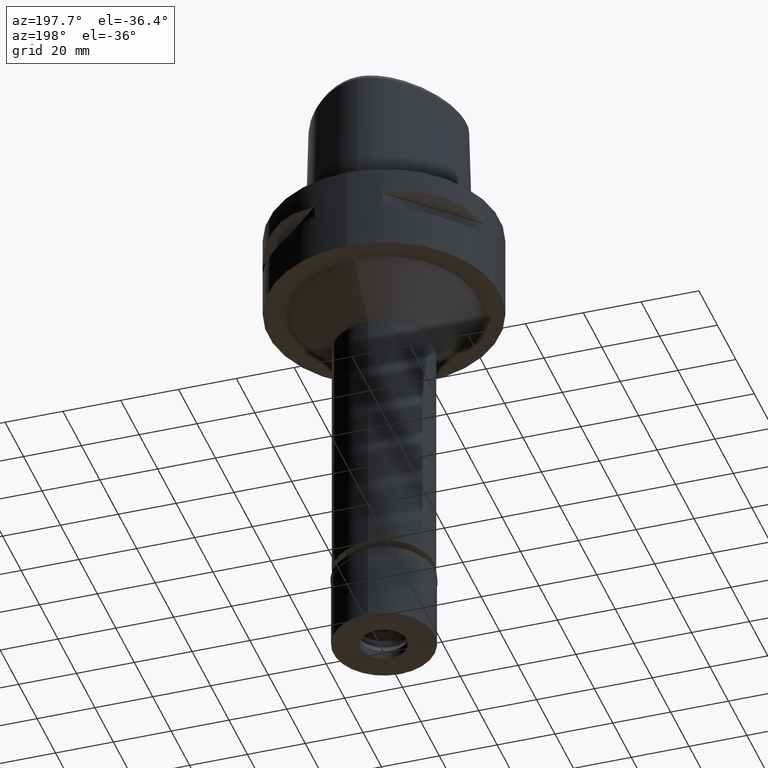
[diagram: clean part render]
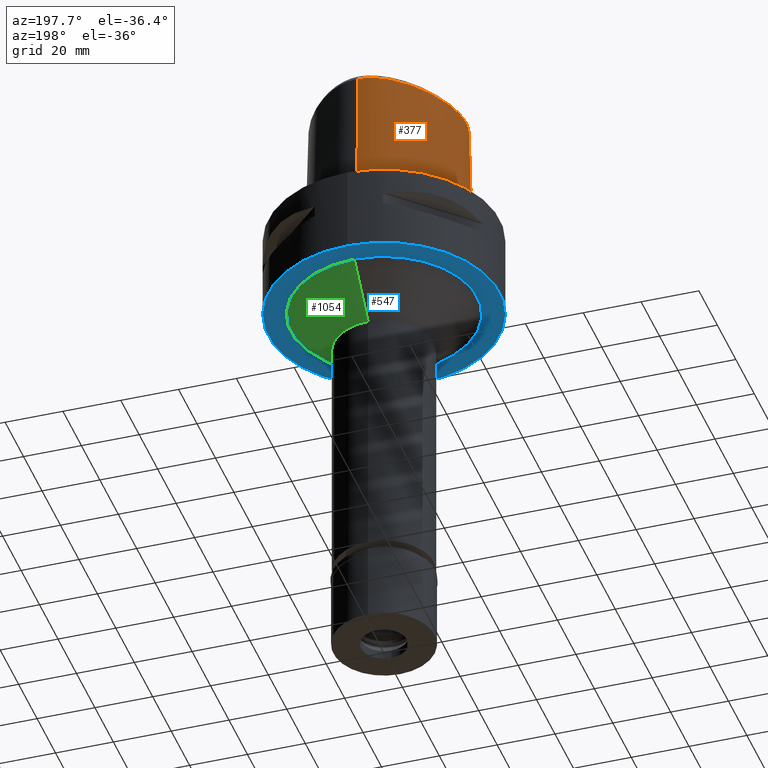
[diagram: same view with three faces highlighted in distinct colors, each labeled with its STEP entity id]
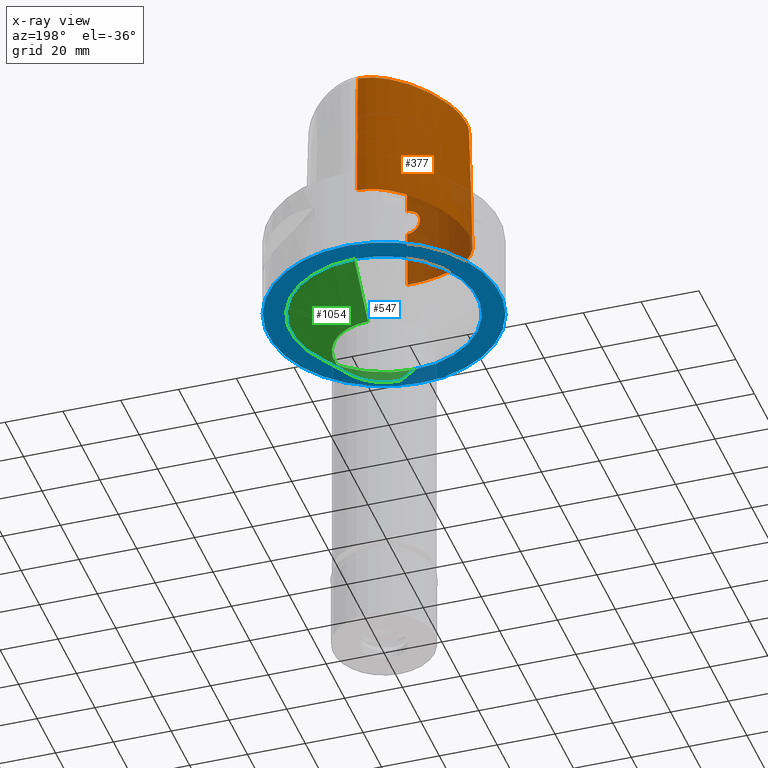
[diagram: x-ray of the same camera — body ghosted, the three highlighted faces saturated]
A machine part, auxiliary view with three faces highlighted in distinct colors.
The next image is the same camera in x-ray (body ghosted, the three faces saturated) — at least one of them is partly hidden behind the body in this view.
Their STEP definitions:

[orange] entity #377 — the highlighted face is a freeform B-spline surface patch.
#18 = CARTESIAN_POINT ( 'NONE',  ( -4.858283135684031119E-09, -24.74922215084299282, 33.03333351495449932 ) ) ;
#29 = CARTESIAN_POINT ( 'NONE',  ( -4.472216406693000579, -24.20008985674000357, 46.52070903171000538 ) ) ;
#52 = CARTESIAN_POINT ( 'NONE',  ( -24.79336081449000062, -16.13554022451999970, -0.9304144766363000585 ) ) ;
#54 = CARTESIAN_POINT ( 'NONE',  ( -26.68853359099298928, -5.367220537273253989, 46.52070903171008354 ) ) ;
#59 = CARTESIAN_POINT ( 'NONE',  ( -3.245740051672676429, -24.92006245179830159, 21.81130774429477981 ) ) ;
#77 = CARTESIAN_POINT ( 'NONE',  ( 0.5548736449643000279, -24.38637836172000206, 47.45113830844999825 ) ) ;
#84 = CARTESIAN_POINT ( 'NONE',  ( -3.459328791574007411, -24.75086403572711191, 27.97515479134742833 ) ) ;
#92 = CARTESIAN_POINT ( 'NONE',  ( -4.516620139914707011, -24.24973684088320525, 44.34713935447333455 ) ) ;
#109 = CARTESIAN_POINT ( 'NONE',  ( -6.528779357264999916, -24.06669574351000307, 47.45113830844999825 ) ) ;
#117 = CARTESIAN_POINT ( 'NONE',  ( -4.550009659928407224, -24.73228693208369933, 25.03285394944704123 ) ) ;
#133 = CARTESIAN_POINT ( 'NONE',  ( -25.30843714899000219, -14.61183300052000078, 15.19676978505999898 ) ) ;
#136 = CARTESIAN_POINT ( 'NONE',  ( -2.404910036721157773, -24.79321437770949998, 28.86288751850016610 ) ) ;
#145 = EDGE_CURVE ( 'NONE', #4617, #909, #4428, .T. ) ;
#160 = CARTESIAN_POINT ( 'NONE',  ( -4.304263127651267951, -24.79330400446724525, 23.52125164125756740 ) ) ;
#172 = CARTESIAN_POINT ( 'NONE',  ( -2.676740186769421825, -25.57500002245401660, -8.981630610148221006E-07 ) ) ;
#186 = CARTESIAN_POINT ( 'NONE',  ( -4.602965878455999693, -24.35127227233000013, 40.00000000000000000 ) ) ;
#231 = CARTESIAN_POINT ( 'NONE',  ( -1.979024681900256155, -25.01188081594408175, 20.90239184516246951 ) ) ;
#273 = CARTESIAN_POINT ( 'NONE',  ( -1.344666072917000002E-11, 28.41206021534999593, 46.52071719450999154 ) ) ;
#302 = B_SPLINE_CURVE_WITH_KNOTS ( 'NONE', 3,
 ( #2607, #2220, #3814, #1240 ),
 .UNSPECIFIED., .F., .F.,
 ( 4, 4 ),
 ( 0.0000000000000000000, 1.000000000000000000 ),
 .UNSPECIFIED. ) ;
#324 = CARTESIAN_POINT ( 'NONE',  ( -1.722296434336842763, -24.81387508079694015, 29.21144792399064016 ) ) ;
#373 = CARTESIAN_POINT ( 'NONE',  ( 0.8850788444128999677, 29.16624661484000214, 15.19676978505999898 ) ) ;
#377 = ADVANCED_FACE ( 'NONE', ( #3550 ), #2624, .T. ) ;
#399 = CARTESIAN_POINT ( 'NONE',  ( -0.7475778414347999945, 29.63225228728000005, -0.9304144766363000585 ) ) ;
#407 = CARTESIAN_POINT ( 'NONE',  ( 1.372734075386999954E-14, -24.83629963747999980, 29.55000000000000071 ) ) ;
#412 = DIRECTION ( 'NONE',  ( -5.053220550043809941E-13, -0.02499051295420905497, -0.9996876883618630583 ) ) ;
#425 = CARTESIAN_POINT ( 'NONE',  ( -6.114741924721999844, 27.99897533564999819, 15.19676978505999898 ) ) ;
#457 = CARTESIAN_POINT ( 'NONE',  ( 0.8532670503982000554, -25.59082387529999636, -0.9304144766363000585 ) ) ;
#459 = CARTESIAN_POINT ( 'NONE',  ( -26.52477687770683090, -8.605158286269631418, 46.52070903171008354 ) ) ;
#464 = CARTESIAN_POINT ( 'NONE',  ( -3.825895809632645417, -24.85889621362734303, 22.53711802513210216 ) ) ;
#481 = CARTESIAN_POINT ( 'NONE',  ( 0.8392169873102000022, -24.78463084467999877, 31.32395404676000084 ) ) ;
#488 = CARTESIAN_POINT ( 'NONE',  ( -4.160790905031579001, -24.72274124955068686, 26.84178595757023444 ) ) ;
#509 = CARTESIAN_POINT ( 'NONE',  ( -25.65830880164000050, -14.81383149360000040, -0.9304144766363000585 ) ) ;
#518 = CARTESIAN_POINT ( 'NONE',  ( -4.198926685531663594, -24.72160612811941505, 26.75259212958650323 ) ) ;
#533 = CARTESIAN_POINT ( 'NONE',  ( -9.304563418361519567, 26.79191408171391231, -8.981630610148221006E-07 ) ) ;
#540 = VECTOR ( 'NONE', #412, 1000.000000000000114 ) ;
#544 = CARTESIAN_POINT ( 'NONE',  ( -3.192130741525157855, -24.76262039752747057, 28.24235843699960569 ) ) ;
#550 = CARTESIAN_POINT ( 'NONE',  ( -4.602965878455999693, -24.35127227233000013, 40.00000000000000000 ) ) ;
#561 = CARTESIAN_POINT ( 'NONE',  ( -22.57751559032999822, -16.93548378770000085, 47.45113830844999825 ) ) ;
#565 = CARTESIAN_POINT ( 'NONE',  ( -3.399231802462692631, -24.90521494129050595, 21.97387284700376142 ) ) ;
#589 = CARTESIAN_POINT ( 'NONE',  ( -1.165430911961757188, -25.05044697737379167, 20.55812161079594347 ) ) ;
#640 = CARTESIAN_POINT ( 'NONE',  ( -3.232655617673357185, -24.92130312931369218, 21.79804365392788768 ) ) ;
#695 = CARTESIAN_POINT ( 'NONE',  ( -1.769098408929377975, -25.02238666794960054, 20.80800104489343383 ) ) ;
#721 = CARTESIAN_POINT ( 'NONE',  ( -3.154109046503999814, 29.36302093374000322, -0.9304144766363000585 ) ) ;
#743 = CARTESIAN_POINT ( 'NONE',  ( -26.50159628839000092, -8.602222732491000556, 47.45113830844999825 ) ) ;
#752 = CARTESIAN_POINT ( 'NONE',  ( -1.984502176480205771, -24.80676203802992319, 29.09712838306113269 ) ) ;
#767 = CARTESIAN_POINT ( 'NONE',  ( 1.372734075386999954E-14, -24.83629963747999980, 29.55000000000000071 ) ) ;
#775 = CARTESIAN_POINT ( 'NONE',  ( -0.6821018006376999843, 28.41983321492000059, 47.45113830844999825 ) ) ;
#806 = CARTESIAN_POINT ( 'NONE',  ( -8.894849814684999245, 26.12169678474999657, 31.32395404676000084 ) ) ;
#827 = CARTESIAN_POINT ( 'NONE',  ( -24.48145224734999914, 6.531540504276000192, 31.32395404676000084 ) ) ;
#834 = CARTESIAN_POINT ( 'NONE',  ( -1.611811031578107345, -24.81663505490543642, 29.25526689574285299 ) ) ;
#850 = CARTESIAN_POINT ( 'NONE',  ( -11.43012069054000079, -22.98864609234000156, 47.45113830844999825 ) ) ;
#857 = VERTEX_POINT ( 'NONE', #2557 ) ;
#858 = CARTESIAN_POINT ( 'NONE',  ( -3.702709904148339781, -24.87336589807970100, 22.35148037005131272 ) ) ;
#881 = CARTESIAN_POINT ( 'NONE',  ( -20.70054131283999865, -18.64994423039000182, 47.45113830844999825 ) ) ;
#883 = VERTEX_POINT ( 'NONE', #2168 ) ;
#886 = CARTESIAN_POINT ( 'NONE',  ( -2.492689275653129588, -24.79011428768484748, 28.80645659143079484 ) ) ;
#891 = CARTESIAN_POINT ( 'NONE',  ( -1.467048192861000018E-12, -25.06378435148999984, 20.44999999999999929 ) ) ;
#897 = CARTESIAN_POINT ( 'NONE',  ( -21.42129060728322543, -19.59889650233153446, -8.981630610148221006E-07 ) ) ;
#901 = CARTESIAN_POINT ( 'NONE',  ( -26.00056140989000042, -13.24168030445999911, 15.19676978505999898 ) ) ;
#907 = CARTESIAN_POINT ( 'NONE',  ( -4.549921019084919749, -24.74001865967037972, 24.72536366591872437 ) ) ;
#909 = VERTEX_POINT ( 'NONE', #891 ) ;
#925 = CARTESIAN_POINT ( 'NONE',  ( -22.86810882073999807, -17.21714036496000233, 31.32395404676000084 ) ) ;
#933 = CARTESIAN_POINT ( 'NONE',  ( -4.536359085941239044, -24.72544551544415015, 25.35955479186053196 ) ) ;
#946 = CARTESIAN_POINT ( 'NONE',  ( -27.85475991996640488, -5.337968749434820914, -8.981630610148221006E-07 ) ) ;
#963 = CARTESIAN_POINT ( 'NONE',  ( -3.896481458106559881, -24.85034248778501365, 22.65020889969181539 ) ) ;
#975 = CARTESIAN_POINT ( 'NONE',  ( -6.262496953525058530, 28.35083009891540939, -8.981630610148221006E-07 ) ) ;
#1017 = CARTESIAN_POINT ( 'NONE',  ( -0.9629684636073007065, 28.41206041874476185, 46.52070903171008354 ) ) ;
#1041 = EDGE_LOOP ( 'NONE', ( #3629, #2876, #2402, #5120, #3816, #5082, #2378, #3860 ) ) ;
#1116 = CARTESIAN_POINT ( 'NONE',  ( 0.5552374614105000106, 28.37983258526000085, 47.45113830844999825 ) ) ;
#1119 = EDGE_CURVE ( 'NONE', #2291, #4144, #302, .T. ) ;
#1147 = CARTESIAN_POINT ( 'NONE',  ( -26.90338677860000161, -8.653104855271999796, 31.32395404676000084 ) ) ;
#1176 = CARTESIAN_POINT ( 'NONE',  ( -2.979937750745999647, 28.57037856398000031, 31.32395404676000084 ) ) ;
#1183 = CARTESIAN_POINT ( 'NONE',  ( -2.182391158249092911, -24.80062287573412760, 28.99314679185866339 ) ) ;
#1203 = CARTESIAN_POINT ( 'NONE',  ( 0.5902542487144000205, 29.18556700418999839, 15.19676978505999898 ) ) ;
#1224 = CARTESIAN_POINT ( 'NONE',  ( -4.849489465481114265E-09, -24.66214466420069229, 36.51666702990934255 ) ) ;
#1227 = VERTEX_POINT ( 'NONE', #1624 ) ;
#1229 = CARTESIAN_POINT ( 'NONE',  ( -27.47379251613999784, -5.347524336881999574, 15.19676978505999898 ) ) ;
#1240 = CARTESIAN_POINT ( 'NONE',  ( -4.602965878455999693, -24.35127227233000013, 40.00000000000000000 ) ) ;
#1252 = CARTESIAN_POINT ( 'NONE',  ( 0.5689259951226000034, -25.59577895909999867, -0.9304144766363000585 ) ) ;
#1279 = CARTESIAN_POINT ( 'NONE',  ( -23.44929528155000042, -17.78045351947999819, -0.9304144766363000585 ) ) ;
#1282 = CARTESIAN_POINT ( 'NONE',  ( -25.97777222568481648, -11.09135444107796786, 46.52070903171008354 ) ) ;
#1289 = CARTESIAN_POINT ( 'NONE',  ( -2.466259342607413974, -24.79105701084885993, 28.82372012011356333 ) ) ;
#1309 = CARTESIAN_POINT ( 'NONE',  ( -24.46791223562999917, -15.89630654127000042, 15.19676978505999898 ) ) ;
#1313 = CARTESIAN_POINT ( 'NONE',  ( -4.494536868534346752, -24.72037511897826789, 25.72370608056143837 ) ) ;
#1320 = CARTESIAN_POINT ( 'NONE',  ( -4.472216406693000579, -24.20008985674000357, 46.52070903171000538 ) ) ;
#1330 = CARTESIAN_POINT ( 'NONE',  ( 0.5642418784031000278, -25.19264542664000217, 15.19676978505999898 ) ) ;
#1332 = B_SPLINE_CURVE_WITH_KNOTS ( 'NONE', 3,
 ( #2361, #4790, #1712, #975, #533, #2172, #3743, #2540, #2104, #3693, #4969, #946, #3348, #1344, #3278, #4478, #4134, #2515, #897, #2929, #3304, #4107, #2491, #172, #1399 ),
 .UNSPECIFIED., .F., .F.,
 ( 4, 1, 1, 1, 1, 1, 1, 1, 1, 1, 1, 1, 1, 1, 1, 1, 1, 1, 1, 1, 1, 1, 4 ),
 ( 0.0000000000000000000, 0.04166666666704999661, 0.08333333333368000972, 0.1250000000003000100, 0.1666666666670000019, 0.2500000000002000067, 0.3333333333335000148, 0.4166666666668000230, 0.4583333333333999837, 0.5000000000001000311, 0.5416666666667000474, 0.5833333333333000637, 0.6250000000000000000, 0.6458333333333000637, 0.6666666666667000474, 0.6874999999999000799, 0.7083333333332000326, 0.7499999999999000799, 0.7916666666666000163, 0.8333333333331000015, 0.8749999999998000488, 0.9166666666664999852, 1.000000000000000000 ),
 .UNSPECIFIED. ) ;
#1334 = CARTESIAN_POINT ( 'NONE',  ( -4.098306025962241250, -24.82420565877257346, 23.01795395542374578 ) ) ;
#1344 = CARTESIAN_POINT ( 'NONE',  ( -27.10051719538249770, -11.41106445930717328, -8.981630610148221006E-07 ) ) ;
#1358 = CARTESIAN_POINT ( 'NONE',  ( -3.211065830876445037, -24.76179211193618457, 28.22361125334742482 ) ) ;
#1387 = CARTESIAN_POINT ( 'NONE',  ( -4.409270466782027498, -24.71744676443915267, 26.16158622813302514 ) ) ;
#1399 = CARTESIAN_POINT ( 'NONE',  ( -1.180411260321999901E-11, -25.57499999999999929, 5.639932965095998436E-14 ) ) ;
#1407 = CARTESIAN_POINT ( 'NONE',  ( -2.349040166738168622, -24.99044712210619679, 21.10040994411799176 ) ) ;
#1481 = CARTESIAN_POINT ( 'NONE',  ( -3.227056402119971690, -24.92183285210593269, 21.79239637393090590 ) ) ;
#1502 = CARTESIAN_POINT ( 'NONE',  ( -1.451045074373000022E-08, -24.57504746727000011, 40.00000005214000254 ) ) ;
#1506 = CARTESIAN_POINT ( 'NONE',  ( -16.83227270842000323, 18.76477913204999837, 47.45113830844999825 ) ) ;
#1534 = CARTESIAN_POINT ( 'NONE',  ( 0.8322161961028999855, 28.36171632456999703, 47.45113830844999825 ) ) ;
#1560 = CARTESIAN_POINT ( 'NONE',  ( -26.73375370734000001, -11.30662581597000127, 15.19676978505999898 ) ) ;
#1568 = CARTESIAN_POINT ( 'NONE',  ( -1.482686770870140114, -24.81966152212502763, 29.30289444251079800 ) ) ;
#1586 = CARTESIAN_POINT ( 'NONE',  ( 0.9115101685679000143, 29.56851175998000159, -0.9304144766363000585 ) ) ;
#1613 = CARTESIAN_POINT ( 'NONE',  ( -26.79474625773000085, 1.906447387331000165, -0.9304144766363000585 ) ) ;
#1624 = CARTESIAN_POINT ( 'NONE',  ( -1.180411260321999901E-11, -25.57499999999999929, 5.639932965095998436E-14 ) ) ;
#1640 = CARTESIAN_POINT ( 'NONE',  ( -20.94550185271999965, -18.97246395069999991, 31.32395404676000084 ) ) ;
#1664 = CARTESIAN_POINT ( 'NONE',  ( -18.36798846969000110, -21.11924012392999828, 15.19676978505999898 ) ) ;
#1666 = CARTESIAN_POINT ( 'NONE',  ( -24.62887906780877501, -14.21948995895251144, 46.52070903171008354 ) ) ;
#1671 = CARTESIAN_POINT ( 'NONE',  ( -2.510338385227682156, -24.78948177504959816, 28.79484028636983695 ) ) ;
#1696 = CARTESIAN_POINT ( 'NONE',  ( -3.900686180413630577, -24.73222278675433472, 27.34720371155059837 ) ) ;
#1704 = CARTESIAN_POINT ( 'NONE',  ( -4.560197131398992632, -24.30012325357083469, 42.17356967723666372 ) ) ;
#1712 = CARTESIAN_POINT ( 'NONE',  ( -3.149084879360997125, 29.34015627206903787, -8.981630610148221006E-07 ) ) ;
#1716 = CARTESIAN_POINT ( 'NONE',  ( -2.373852718363999692, -25.21827345166000001, 15.19676978505999898 ) ) ;
#1721 = CARTESIAN_POINT ( 'NONE',  ( -4.207829589086045985, -24.80824686016802261, 23.26889234074807078 ) ) ;
#1741 = CARTESIAN_POINT ( 'NONE',  ( -4.322680882352817555, -24.71812462909636210, 26.45319451589575266 ) ) ;
#1765 = CARTESIAN_POINT ( 'NONE',  ( -4.256460948041309145, -24.80084657812259863, 23.39133378591556678 ) ) ;
#1801 = CARTESIAN_POINT ( 'NONE',  ( -12.44957317646415440, 23.16260189109142331, 46.52070903171008354 ) ) ;
#1841 = CARTESIAN_POINT ( 'NONE',  ( -2.724936705858741259, -24.96514019468460788, 21.34399272640271050 ) ) ;
#1869 = CARTESIAN_POINT ( 'NONE',  ( -1.754298049354317213, -25.02308377135080875, 20.80178576367013932 ) ) ;
#1877 = CARTESIAN_POINT ( 'NONE',  ( -24.12841474588899615, 6.387994236496619571, 46.52070903171008354 ) ) ;
#1921 = CARTESIAN_POINT ( 'NONE',  ( -12.70057963734000062, 23.45048169913999914, 31.32395404676000084 ) ) ;
#1924 = CARTESIAN_POINT ( 'NONE',  ( -7.937300651753208314, -23.78071178103738248, 46.52070903171008354 ) ) ;
#1930 = CARTESIAN_POINT ( 'NONE',  ( -1.733314166582773153, -24.81359117582309892, 29.20692116581517084 ) ) ;
#1933 = LINE ( 'NONE', #4006, #540 ) ;
#1951 = CARTESIAN_POINT ( 'NONE',  ( -24.85610465458000107, 6.683875467420999250, 15.19676978505999898 ) ) ;
#1959 = CARTESIAN_POINT ( 'NONE',  ( -4.472216406693000579, -24.20008985674000357, 46.52070903171000538 ) ) ;
#1982 = CARTESIAN_POINT ( 'NONE',  ( -17.45811262699000110, 19.27961880698999764, 15.19676978505999898 ) ) ;
#2007 = CARTESIAN_POINT ( 'NONE',  ( -3.067023398624999952, 28.96669974886000176, 15.19676978505999898 ) ) ;
#2017 = CARTESIAN_POINT ( 'NONE',  ( -0.2769662722958331491, -24.83629963747999980, 29.55000000000000071 ) ) ;
#2026 = EDGE_CURVE ( 'NONE', #3582, #883, #4917, .T. ) ;
#2034 = CARTESIAN_POINT ( 'NONE',  ( -9.316733117264998754, 26.81182150639000028, -0.9304144766363000585 ) ) ;
#2061 = CARTESIAN_POINT ( 'NONE',  ( -15.30623779600000134, -22.98697010186999989, -0.9304144766363000585 ) ) ;
#2064 = CARTESIAN_POINT ( 'NONE',  ( -23.83579125613754002, -15.43164133759193390, 46.52070903171008354 ) ) ;
#2069 = CARTESIAN_POINT ( 'NONE',  ( -3.029613744919227081, -24.76954858878827892, 28.39612668127736939 ) ) ;
#2091 = CARTESIAN_POINT ( 'NONE',  ( -4.547910621292748701, -24.72974527037225911, 25.14250056299538727 ) ) ;
#2104 = CARTESIAN_POINT ( 'NONE',  ( -25.20914252072918060, 6.827421883483855147, -8.981630610148221006E-07 ) ) ;
#2109 = CARTESIAN_POINT ( 'NONE',  ( -17.98126124112999946, -20.40884543800000017, 47.45113830844999825 ) ) ;
#2115 = CARTESIAN_POINT ( 'NONE',  ( -4.201380620709784353, -24.72153596869750913, 26.74670933509911563 ) ) ;
#2137 = CARTESIAN_POINT ( 'NONE',  ( -26.34453533486999888, -11.19579297653000083, 31.32395404676000084 ) ) ;
#2141 = CARTESIAN_POINT ( 'NONE',  ( -3.957281473798043514, -24.84276546235786043, 22.75305380327923999 ) ) ;
#2162 = CARTESIAN_POINT ( 'NONE',  ( -3.172181247292561235, -24.76348918694394285, 28.26195868750398077 ) ) ;
#2168 = CARTESIAN_POINT ( 'NONE',  ( -1.344666072917000002E-11, 28.41206021534999593, 46.52071719450999154 ) ) ;
#2172 = CARTESIAN_POINT ( 'NONE',  ( -13.21796082028640029, 24.04386720451877579, -8.981630610148221006E-07 ) ) ;
#2220 = CARTESIAN_POINT ( 'NONE',  ( -1.541632516112587448, -24.57506718850393312, 40.00000010711481480 ) ) ;
#2234 = CARTESIAN_POINT ( 'NONE',  ( -1.843442154715413395, -25.01881181296652912, 20.83994273181284385 ) ) ;
#2269 = EDGE_CURVE ( 'NONE', #883, #857, #3881, .T. ) ;
#2291 = VERTEX_POINT ( 'NONE', #1502 ) ;
#2313 = CARTESIAN_POINT ( 'NONE',  ( -5.957940678934000367, 27.62557846609999856, 31.32395404676000084 ) ) ;
#2337 = CARTESIAN_POINT ( 'NONE',  ( -27.12297207980999758, -11.41745865540999993, -0.9304144766363000585 ) ) ;
#2347 = CARTESIAN_POINT ( 'NONE',  ( -2.249867388139984214, -24.79844751147312465, 28.95562542824798058 ) ) ;
#2361 = CARTESIAN_POINT ( 'NONE',  ( 3.071360863650999976E-11, 29.57499999998999840, 4.999704354228999432E-14 ) ) ;
#2366 = CARTESIAN_POINT ( 'NONE',  ( -17.77103258628000049, 19.53703864447000171, -0.9304144766363000585 ) ) ;
#2378 = ORIENTED_EDGE ( 'NONE', *, *, #2269, .T. ) ;
#2393 = CARTESIAN_POINT ( 'NONE',  ( -17.14519266769999817, 19.02219896951999800, 31.32395404676000084 ) ) ;
#2402 = ORIENTED_EDGE ( 'NONE', *, *, #4657, .F. ) ;
#2415 = CARTESIAN_POINT ( 'NONE',  ( -8.683908163395999580, 25.77663442393000182, 47.45113830844999825 ) ) ;
#2424 = CARTESIAN_POINT ( 'NONE',  ( -1.676286854296592299, -24.81504355059169242, 29.23004141242347842 ) ) ;
#2447 = CARTESIAN_POINT ( 'NONE',  ( -25.64632274977799398, 1.601536978524745969, 46.52070903171008354 ) ) ;
#2452 = VECTOR ( 'NONE', #2700, 1000.000000000000227 ) ;
#2453 = CARTESIAN_POINT ( 'NONE',  ( -3.310528231614959349, -24.91386642802240203, 21.87824841565020151 ) ) ;
#2474 = CARTESIAN_POINT ( 'NONE',  ( -18.17462485540999850, -20.76404278096999789, 31.32395404676000084 ) ) ;
#2479 = CARTESIAN_POINT ( 'NONE',  ( -4.140463633215315298, -24.72339410617355782, 26.88684090363467050 ) ) ;
#2491 = CARTESIAN_POINT ( 'NONE',  ( -6.691850466911849260, -25.24546877230646302, -8.981630610148221006E-07 ) ) ;
#2497 = CARTESIAN_POINT ( 'NONE',  ( -24.14246365678000217, -15.65707285802999849, 31.32395404676000084 ) ) ;
#2504 = CARTESIAN_POINT ( 'NONE',  ( -4.212409792926581353, -24.80756021599265537, 23.28005703556016925 ) ) ;
#2515 = CARTESIAN_POINT ( 'NONE',  ( -23.43253030367175427, -17.76420411724730286, -8.981630610148221006E-07 ) ) ;
#2521 = CARTESIAN_POINT ( 'NONE',  ( -6.584202217011000613, -24.46732447774000008, 31.32395404676000084 ) ) ;
#2526 = CARTESIAN_POINT ( 'NONE',  ( -3.797137772289172375, -24.86229941254662279, 22.49313827486260564 ) ) ;
#2540 = CARTESIAN_POINT ( 'NONE',  ( -22.33885467720221385, 12.89734376127693416, -8.981630610148221006E-07 ) ) ;
#2551 = CARTESIAN_POINT ( 'NONE',  ( -3.613911253851755934, -24.88311648731248482, 22.23154152753993529 ) ) ;
#2557 = CARTESIAN_POINT ( 'NONE',  ( 3.071360863650999976E-11, 29.57499999998999840, 4.999704354228999432E-14 ) ) ;
#2575 = CARTESIAN_POINT ( 'NONE',  ( -1.791332517422943749, -25.02133236723710041, 20.81740716610678987 ) ) ;
#2607 = CARTESIAN_POINT ( 'NONE',  ( -1.451045074373000022E-08, -24.57504746727000011, 40.00000005214000254 ) ) ;
#2624 = B_SPLINE_SURFACE_WITH_KNOTS ( 'NONE', 3, 3, ( 
 ( #1586, #373, #5104, #1534 ),
 ( #3968, #1203, #4342, #1116 ),
 ( #399, #3150, #4294, #775 ),
 ( #721, #2007, #1176, #5131 ),
 ( #3908, #425, #2313, #3596 ),
 ( #2034, #3173, #806, #2415 ),
 ( #4769, #3625, #1921, #2754 ),
 ( #2366, #1982, #2393, #1506 ),
 ( #3935, #2785, #3518, #2728 ),
 ( #3572, #1951, #827, #3097 ),
 ( #1613, #4016, #4691, #2705 ),
 ( #5155, #4375, #3126, #3996 ),
 ( #3204, #1229, #4317, #4723 ),
 ( #2814, #4398, #1147, #743 ),
 ( #2337, #1560, #2137, #4842 ),
 ( #3726, #901, #3330, #4898 ),
 ( #509, #133, #4532, #4138 ),
 ( #52, #1309, #2497, #3255 ),
 ( #1279, #3284, #925, #561 ),
 ( #4091, #4873, #1640, #881 ),
 ( #4817, #1664, #2474, #2109 ),
 ( #2061, #4920, #4504, #2894 ),
 ( #2865, #3699, #3651, #850 ),
 ( #4484, #4068, #2521, #109 ),
 ( #4458, #1716, #3673, #3308 ),
 ( #1252, #1330, #2914, #77 ),
 ( #457, #2839, #481, #4114 ) ),
 .UNSPECIFIED., .F., .F., .F.,
 ( 4, 1, 1, 1, 1, 1, 1, 1, 1, 1, 1, 1, 1, 1, 1, 1, 1, 1, 1, 1, 1, 1, 1, 1, 4 ),
 ( 4, 4 ),
 ( -0.01204223939038000062, 0.0000000000000000000, 0.04166666666704999661, 0.08333333333368000972, 0.1250000000003000100, 0.1666666666670000019, 0.2500000000002000067, 0.3333333333335000148, 0.4166666666668000230, 0.4583333333333999837, 0.5000000000001000311, 0.5416666666667000474, 0.5833333333333000637, 0.6250000000000000000, 0.6458333333333000637, 0.6666666666667000474, 0.6874999999999000799, 0.7083333333332000326, 0.7499999999999000799, 0.7916666666666000163, 0.8333333333331000015, 0.8749999999998000488, 0.9166666666664999852, 1.000000000000000000, 1.008851807892999997 ),
 ( 5.338237064194999841E-09, 0.9999997277498999804 ),
 .UNSPECIFIED. ) ;
#2651 = CARTESIAN_POINT ( 'NONE',  ( -1.888484788632717848, -25.01654759054933308, 20.86028587657998656 ) ) ;
#2686 = CARTESIAN_POINT ( 'NONE',  ( -8.696078067630889308, 25.79654218449118730, 46.52070903171008354 ) ) ;
#2700 = DIRECTION ( 'NONE',  ( 9.489638221839231937E-13, 0.02499051293976060906, -0.9996876883622242138 ) ) ;
#2705 = CARTESIAN_POINT ( 'NONE',  ( -25.62380427656000137, 1.595558246091000054, 47.45113830844999825 ) ) ;
#2728 = CARTESIAN_POINT ( 'NONE',  ( -21.30723583794999954, 12.30173104416000029, 47.45113830844999825 ) ) ;
#2735 = CARTESIAN_POINT ( 'NONE',  ( -1.371865276106448261, -24.82198728018540734, 29.33894196721532310 ) ) ;
#2754 = CARTESIAN_POINT ( 'NONE',  ( -12.43420517454000063, 23.14497629918999877, 47.45113830844999825 ) ) ;
#2777 = CARTESIAN_POINT ( 'NONE',  ( 1.372734075386999954E-14, -24.83629963747999980, 29.55000000000000071 ) ) ;
#2785 = CARTESIAN_POINT ( 'NONE',  ( -22.00846693109999919, 12.70659196839000060, 15.19676978505999898 ) ) ;
#2814 = CARTESIAN_POINT ( 'NONE',  ( -27.70696775902000297, -8.754869100832999962, -0.9304144766363000585 ) ) ;
#2823 = CARTESIAN_POINT ( 'NONE',  ( -1.150414049173519748, -24.82628098737378153, 29.40485804970605699 ) ) ;
#2839 = CARTESIAN_POINT ( 'NONE',  ( 0.8462420188541999178, -25.18772735998999934, 15.19676978505999898 ) ) ;
#2865 = CARTESIAN_POINT ( 'NONE',  ( -11.74634101483999871, -24.15815461093999872, -0.9304144766363000585 ) ) ;
#2867 = CARTESIAN_POINT ( 'NONE',  ( -20.71467387648235459, -18.66855143331104827, 46.52070903171008354 ) ) ;
#2874 = CARTESIAN_POINT ( 'NONE',  ( -4.544092989177815234, -24.72741046393047526, 25.25074796832975466 ) ) ;
#2876 = ORIENTED_EDGE ( 'NONE', *, *, #145, .F. ) ;
#2884 = B_SPLINE_CURVE_WITH_KNOTS ( 'NONE', 3,
 ( #1320, #92, #1704, #550 ),
 .UNSPECIFIED., .F., .F.,
 ( 4, 4 ),
 ( 0.0000000000000000000, 1.000000000000000000 ),
 .UNSPECIFIED. ) ;
#2894 = CARTESIAN_POINT ( 'NONE',  ( -14.86558287291999925, -21.85772792966999845, 47.45113830844999825 ) ) ;
#2898 = CARTESIAN_POINT ( 'NONE',  ( -2.944900302943596948, -24.77298581947536249, 28.46923970402222182 ) ) ;
#2914 = CARTESIAN_POINT ( 'NONE',  ( 0.5595577616836999724, -24.78951189418000212, 31.32395404676000084 ) ) ;
#2919 = CARTESIAN_POINT ( 'NONE',  ( -3.808704889424079809, -24.86093372512832289, 22.51074749453151114 ) ) ;
#2929 = CARTESIAN_POINT ( 'NONE',  ( -18.55019650159792377, -21.45394533227971579, -8.981630610148221006E-07 ) ) ;
#2943 = CARTESIAN_POINT ( 'NONE',  ( -4.549596676163453424, -24.73138399865687731, 25.07048059281705576 ) ) ;
#2992 = CARTESIAN_POINT ( 'NONE',  ( -2.224291573382352727, -24.99814500580220766, 21.02832322412745825 ) ) ;
#3049 = CARTESIAN_POINT ( 'NONE',  ( -2.978031838721042046, -24.94531787462550199, 21.54303487591371891 ) ) ;
#3094 = CARTESIAN_POINT ( 'NONE',  ( -1.344666072917000002E-11, 28.41206021534999593, 46.52071719450999154 ) ) ;
#3097 = CARTESIAN_POINT ( 'NONE',  ( -24.10679984010999632, 6.379205541131000246, 47.45113830844999825 ) ) ;
#3107 = CARTESIAN_POINT ( 'NONE',  ( -5.810185802762860341, 27.27372406630062329, 46.52070903171008354 ) ) ;
#3126 = CARTESIAN_POINT ( 'NONE',  ( -26.76156705728999796, -1.884109319980999953, 31.32395404676000084 ) ) ;
#3150 = CARTESIAN_POINT ( 'NONE',  ( -0.7257524945023999807, 29.22811259648999993, 15.19676978505999898 ) ) ;
#3173 = CARTESIAN_POINT ( 'NONE',  ( -9.105791465975000776, 26.46675914556999842, 15.19676978505999898 ) ) ;
#3204 = CARTESIAN_POINT ( 'NONE',  ( -27.87808443100000133, -5.337383714068000273, -0.9304144766363000585 ) ) ;
#3255 = CARTESIAN_POINT ( 'NONE',  ( -23.81701507792000072, -15.41783917477999921, 47.45113830844999825 ) ) ;
#3257 = CARTESIAN_POINT ( 'NONE',  ( -14.87405714085419639, -21.87944447072877097, 46.52070903171008354 ) ) ;
#3258 = EDGE_CURVE ( 'NONE', #909, #1227, #1933, .T. ) ;
#3263 = CARTESIAN_POINT ( 'NONE',  ( -4.219931661120497779, -24.80642684597901848, 23.29859562715307675 ) ) ;
#3278 = CARTESIAN_POINT ( 'NONE',  ( -26.34912739279852190, -13.39455079027902329, -8.981630610148221006E-07 ) ) ;
#3284 = CARTESIAN_POINT ( 'NONE',  ( -23.15870205113999702, -17.49879694221999671, 15.19676978505999898 ) ) ;
#3292 = CARTESIAN_POINT ( 'NONE',  ( -4.183313010706772417, -24.72206008749300921, 26.78965014441195791 ) ) ;
#3304 = CARTESIAN_POINT ( 'NONE',  ( -15.29776367104423684, -22.96525392721420289, -8.981630610148221006E-07 ) ) ;
#3308 = CARTESIAN_POINT ( 'NONE',  ( -2.334460938993000223, -24.41161097823999881, 47.45113830844999825 ) ) ;
#3312 = CARTESIAN_POINT ( 'NONE',  ( -3.205390121192459141, -24.76204090357540721, 28.22925085367090858 ) ) ;
#3330 = CARTESIAN_POINT ( 'NONE',  ( -25.63065467438000056, -13.07945041072999892, 31.32395404676000084 ) ) ;
#3335 = CARTESIAN_POINT ( 'NONE',  ( -3.790579096131103665, -24.86307050843588229, 22.48323682071577423 ) ) ;
#3348 = CARTESIAN_POINT ( 'NONE',  ( -27.68378756080767644, -8.751933596583231889, -8.981630610148221006E-07 ) ) ;
#3365 = CARTESIAN_POINT ( 'NONE',  ( -4.441732659387183979, -24.76864030037668840, 24.00221451032574294 ) ) ;
#3436 = CARTESIAN_POINT ( 'NONE',  ( -1.467048192861000018E-12, -25.06378435148999984, 20.44999999999999929 ) ) ;
#3479 = CARTESIAN_POINT ( 'NONE',  ( -21.32746397970838004, 12.31340991043913924, 46.52070903171008354 ) ) ;
#3518 = CARTESIAN_POINT ( 'NONE',  ( -21.65785138451999714, 12.50416150627000000, 31.32395404676000084 ) ) ;
#3522 = CARTESIAN_POINT ( 'NONE',  ( -11.43620194735589379, -23.01113699853141981, 46.52070903171008354 ) ) ;
#3550 = FACE_OUTER_BOUND ( 'NONE', #1041, .T. ) ;
#3572 = CARTESIAN_POINT ( 'NONE',  ( -25.23075706182000033, 6.836210430566000085, -0.9304144766363000585 ) ) ;
#3582 = VERTEX_POINT ( 'NONE', #1959 ) ;
#3596 = CARTESIAN_POINT ( 'NONE',  ( -5.801139433146000002, 27.25218159654000161, 47.45113830844999825 ) ) ;
#3604 = CARTESIAN_POINT ( 'NONE',  ( -0.5644801122068425769, -24.83439132317404230, 29.52465347867333634 ) ) ;
#3625 = CARTESIAN_POINT ( 'NONE',  ( -12.96695410013000149, 23.75598709908999950, 15.19676978505999898 ) ) ;
#3629 = ORIENTED_EDGE ( 'NONE', *, *, #3258, .F. ) ;
#3633 = CARTESIAN_POINT ( 'NONE',  ( -1.703896036126127278, -24.81434470502067668, 29.21892603896870710 ) ) ;
#3651 = CARTESIAN_POINT ( 'NONE',  ( -11.53552746531000039, -23.37848226520000239, 31.32395404676000084 ) ) ;
#3653 = CARTESIAN_POINT ( 'NONE',  ( -25.28208905154020414, -12.92658008282621473, 46.52070903171008354 ) ) ;
#3659 = CARTESIAN_POINT ( 'NONE',  ( -2.520279592226922993, -24.78912363236071315, 28.78824203054359288 ) ) ;
#3673 = CARTESIAN_POINT ( 'NONE',  ( -2.354156828678999780, -24.81494221494999763, 31.32395404676000084 ) ) ;
#3678 = CARTESIAN_POINT ( 'NONE',  ( -4.406213798168644225, -24.77565163120073777, 23.85472934568140957 ) ) ;
#3693 = CARTESIAN_POINT ( 'NONE',  ( -26.77222816444523446, 1.900468755770840401, -8.981630610148221006E-07 ) ) ;
#3699 = CARTESIAN_POINT ( 'NONE',  ( -11.64093424006999911, -23.76831843806999700, 15.19676978505999898 ) ) ;
#3706 = CARTESIAN_POINT ( 'NONE',  ( -3.125212091967373595, -24.76551320166747416, 28.30726214217308723 ) ) ;
#3726 = CARTESIAN_POINT ( 'NONE',  ( -26.37046814540000028, -13.40391019819000107, -0.9304144766363000585 ) ) ;
#3730 = CARTESIAN_POINT ( 'NONE',  ( -4.192714366875117449, -24.72178541175449595, 26.76740225216487090 ) ) ;
#3743 = CARTESIAN_POINT ( 'NONE',  ( -17.75297952913286892, 19.52218751433636257, -8.981630610148221006E-07 ) ) ;
#3753 = CARTESIAN_POINT ( 'NONE',  ( -4.525164906393139397, -24.74975131237584591, 24.43996234641500465 ) ) ;
#3814 = CARTESIAN_POINT ( 'NONE',  ( -3.083107012282212178, -24.50056602082081270, 40.00000010711481480 ) ) ;
#3816 = ORIENTED_EDGE ( 'NONE', *, *, #5101, .F. ) ;
#3826 = CARTESIAN_POINT ( 'NONE',  ( -0.5686770761292604393, -25.06378435149000339, 20.45000000000000995 ) ) ;
#3860 = ORIENTED_EDGE ( 'NONE', *, *, #4830, .T. ) ;
#3881 = LINE ( 'NONE', #3094, #2452 ) ;
#3908 = CARTESIAN_POINT ( 'NONE',  ( -6.271543170511000298, 28.37237220520999870, -0.9304144766363000585 ) ) ;
#3935 = CARTESIAN_POINT ( 'NONE',  ( -22.35908247767000034, 12.90902243050999942, -0.9304144766363000585 ) ) ;
#3968 = CARTESIAN_POINT ( 'NONE',  ( 0.6077626423664000965, 29.58843421366000115, -0.9304144766363000585 ) ) ;
#3996 = CARTESIAN_POINT ( 'NONE',  ( -26.36214112472999815, -1.945111148090999942, 47.45113830844999825 ) ) ;
#4006 = CARTESIAN_POINT ( 'NONE',  ( -1.467048192861000018E-12, -25.06378435148999984, 20.44999999999999929 ) ) ;
#4016 = CARTESIAN_POINT ( 'NONE',  ( -26.40443226401000132, 1.802817673584000246, 15.19676978505999898 ) ) ;
#4044 = CARTESIAN_POINT ( 'NONE',  ( -22.59428085107287743, -16.95173346409835347, 46.52070903171008354 ) ) ;
#4050 = CARTESIAN_POINT ( 'NONE',  ( -3.265305598819546518, -24.91820214815111711, 21.83126415608265702 ) ) ;
#4068 = CARTESIAN_POINT ( 'NONE',  ( -6.639625076757000421, -24.86795321197000064, 15.19676978505999898 ) ) ;
#4075 = CARTESIAN_POINT ( 'NONE',  ( -4.098396066246055902, -24.72479182399337461, 26.97739233805751269 ) ) ;
#4091 = CARTESIAN_POINT ( 'NONE',  ( -21.43542293247999808, -19.61750339130999876, -0.9304144766363000585 ) ) ;
#4095 = CARTESIAN_POINT ( 'NONE',  ( -2.771982096822934505, -24.77983138410381869, 28.61121349796145807 ) ) ;
#4107 = CARTESIAN_POINT ( 'NONE',  ( -11.74025986062749283, -24.13566408421613829, -8.981630610148221006E-07 ) ) ;
#4114 = CARTESIAN_POINT ( 'NONE',  ( 0.8321919557660999445, -24.38153432936999820, 47.45113830844999825 ) ) ;
#4120 = CARTESIAN_POINT ( 'NONE',  ( -4.068466760403409488, -24.72584630863870103, 27.03834969239067121 ) ) ;
#4134 = CARTESIAN_POINT ( 'NONE',  ( -24.77458495306543540, -16.12173829457910301, -8.981630610148221006E-07 ) ) ;
#4138 = CARTESIAN_POINT ( 'NONE',  ( -24.60869384369000201, -14.20783601436000154, 47.45113830844999825 ) ) ;
#4142 = CARTESIAN_POINT ( 'NONE',  ( -3.472208232089663671, -24.89783358727838447, 22.05860165752378776 ) ) ;
#4144 = VERTEX_POINT ( 'NONE', #186 ) ;
#4260 = CARTESIAN_POINT ( 'NONE',  ( -2.039991806420665021, -25.00858519317946360, 20.93235562228053226 ) ) ;
#4294 = CARTESIAN_POINT ( 'NONE',  ( -0.7039271475700998870, 28.82397290569999981, 31.32395404676000084 ) ) ;
#4301 = CARTESIAN_POINT ( 'NONE',  ( -2.897876354790354991, 28.19692242654819125, 46.52070903171008354 ) ) ;
#4317 = CARTESIAN_POINT ( 'NONE',  ( -27.06950060128000146, -5.357664959697000739, 31.32395404676000084 ) ) ;
#4342 = CARTESIAN_POINT ( 'NONE',  ( 0.5727458550623999445, 28.78269979473000362, 31.32395404676000084 ) ) ;
#4370 = B_SPLINE_CURVE_WITH_KNOTS ( 'NONE', 3,
 ( #4419, #1224, #18, #2777 ),
 .UNSPECIFIED., .F., .F.,
 ( 4, 4 ),
 ( 0.0000000000000000000, 1.000000000000000000 ),
 .UNSPECIFIED. ) ;
#4375 = CARTESIAN_POINT ( 'NONE',  ( -27.16099298984999777, -1.823107491872000052, 15.19676978505999898 ) ) ;
#4398 = CARTESIAN_POINT ( 'NONE',  ( -27.30517726880999874, -8.703986978052000723, 15.19676978505999898 ) ) ;
#4419 = CARTESIAN_POINT ( 'NONE',  ( -1.451045074373000022E-08, -24.57504746727000011, 40.00000005214000254 ) ) ;
#4426 = CARTESIAN_POINT ( 'NONE',  ( -5.572548441001297981, -24.09475885057384303, 46.52070903171008354 ) ) ;
#4428 = B_SPLINE_CURVE_WITH_KNOTS ( 'NONE', 3,
 ( #407, #2017, #3604, #4802, #2823, #2735, #1568, #834, #2424, #3633, #324, #1930, #5114, #752, #1183, #2347, #4882, #136, #1289, #886, #1671, #3659, #4926, #4095, #2898, #2069, #3706, #2162, #544, #3312, #1358, #84, #4851, #1696, #4510, #4120, #4075, #2479, #488, #3292, #3730, #518, #2115, #1741, #1387, #1313, #4489, #933, #2874, #2091, #2943, #117, #907, #3753, #3365, #3678, #4540, #160, #1765, #4435, #3263, #2504, #1721, #4466, #1334, #4958, #2141, #963, #4902, #464, #2919, #2526, #3335, #858, #2551, #4142, #565, #2453, #4050, #59, #640, #1481, #3049, #1841, #1407, #2992, #4260, #231, #2651, #2234, #2575, #695, #1869, #4612, #589, #3826, #3436 ),
 .UNSPECIFIED., .F., .F.,
 ( 4, 2, 2, 1, 1, 1, 2, 2, 2, 2, 1, 1, 2, 2, 2, 1, 1, 1, 2, 2, 2, 2, 2, 1, 1, 2, 2, 2, 2, 1, 2, 2, 2, 2, 1, 1, 1, 2, 2, 2, 2, 1, 1, 2, 2, 2, 1, 1, 1, 2, 2, 2, 2, 2, 1, 1, 2, 2, 4 ),
 ( 0.0000000000000000000, 0.06249999999998905043, 0.09374999999998356870, 0.1093749999999808348, 0.1171874999999794748, 0.1210937499999787531, 0.1230468749999785588, 0.1249999999999783507, 0.1562499999999781286, 0.1718749999999779621, 0.1796874999999778511, 0.1835937499999777678, 0.1855468749999779066, 0.1874999999999780176, 0.2187499999999800437, 0.2343749999999812650, 0.2421874999999818201, 0.2460937499999820977, 0.2480468749999824585, 0.2499999999999828471, 0.3125000000000057732, 0.3437500000000175415, 0.3593750000000238143, 0.3671875000000265343, 0.3710937500000279221, 0.3730468750000282552, 0.3750000000000285327, 0.4375000000000252576, 0.4687500000000232592, 0.4843750000000222045, 0.4921875000000220934, 0.5000000000000219824, 0.5625000000000232037, 0.5937500000000235367, 0.6093750000000233147, 0.6171875000000233147, 0.6210937500000229816, 0.6230468750000228706, 0.6250000000000227596, 0.6562500000000179856, 0.6718750000000157652, 0.6796875000000145439, 0.6835937500000139888, 0.6855468750000134337, 0.6875000000000128786, 0.7187500000000042188, 0.7343749999999995559, 0.7421874999999972244, 0.7460937499999960032, 0.7480468749999956701, 0.7499999999999952260, 0.8124999999999943379, 0.8437499999999938938, 0.8593749999999935607, 0.8671874999999934497, 0.8710937499999934497, 0.8730468749999934497, 0.8749999999999934497, 1.000000000000000000 ),
 .UNSPECIFIED. ) ;
#4435 = CARTESIAN_POINT ( 'NONE',  ( -4.231109674115377750, -24.80473516988229221, 23.32640847146415197 ) ) ;
#4458 = CARTESIAN_POINT ( 'NONE',  ( -2.393548608048999604, -25.62160468836999883, -0.9304144766363000585 ) ) ;
#4460 = CARTESIAN_POINT ( 'NONE',  ( -26.38518529508934662, -1.941591755871800995, 46.52070903171008354 ) ) ;
#4466 = CARTESIAN_POINT ( 'NONE',  ( -4.156037652092123835, -24.81598364112163679, 23.14362525770374646 ) ) ;
#4478 = CARTESIAN_POINT ( 'NONE',  ( -25.63812391808772162, -14.80217774563364230, -8.981630610148221006E-07 ) ) ;
#4484 = CARTESIAN_POINT ( 'NONE',  ( -6.695047936503000230, -25.26858194619999765, -0.9304144766363000585 ) ) ;
#4489 = CARTESIAN_POINT ( 'NONE',  ( -4.515545264919025747, -24.72200876241212697, 25.57765437787082163 ) ) ;
#4504 = CARTESIAN_POINT ( 'NONE',  ( -15.01246784727999994, -22.23414198707000011, 31.32395404676000084 ) ) ;
#4510 = CARTESIAN_POINT ( 'NONE',  ( -3.972636365752692633, -24.72937778087100469, 27.22257177643495751 ) ) ;
#4532 = CARTESIAN_POINT ( 'NONE',  ( -24.95856549634000032, -14.40983450743999938, 31.32395404676000084 ) ) ;
#4540 = CARTESIAN_POINT ( 'NONE',  ( -4.340344041599830227, -24.78724112967246995, 23.63256450709636525 ) ) ;
#4612 = CARTESIAN_POINT ( 'NONE',  ( -1.748501813549813599, -25.02335543620022307, 20.79936485166495430 ) ) ;
#4617 = VERTEX_POINT ( 'NONE', #767 ) ;
#4621 = CARTESIAN_POINT ( 'NONE',  ( -16.85032607016413309, 18.77963051275659012, 46.52070903171008354 ) ) ;
#4657 = EDGE_CURVE ( 'NONE', #2291, #4617, #4370, .T. ) ;
#4691 = CARTESIAN_POINT ( 'NONE',  ( -26.01411827027999735, 1.699187959838000195, 31.32395404676000084 ) ) ;
#4723 = CARTESIAN_POINT ( 'NONE',  ( -26.66520868642000153, -5.367805582511000040, 47.45113830844999825 ) ) ;
#4769 = CARTESIAN_POINT ( 'NONE',  ( -13.23332856291999882, 24.06149249903999632, -0.9304144766363000585 ) ) ;
#4790 = CARTESIAN_POINT ( 'NONE',  ( -1.049694959834582830, 29.57500002245776471, -8.981630610148221006E-07 ) ) ;
#4802 = CARTESIAN_POINT ( 'NONE',  ( -1.003044292487226929, -24.82866638025620887, 29.44055839642895478 ) ) ;
#4817 = CARTESIAN_POINT ( 'NONE',  ( -18.56135208395999925, -21.47443746689999955, -0.9304144766363000585 ) ) ;
#4830 = EDGE_CURVE ( 'NONE', #857, #1227, #1332, .T. ) ;
#4842 = CARTESIAN_POINT ( 'NONE',  ( -25.95531696239000041, -11.08496013709000039, 47.45113830844999825 ) ) ;
#4844 = CARTESIAN_POINT ( 'NONE',  ( -17.99241701171357022, -20.42933791837082325, 46.52070903171008354 ) ) ;
#4851 = CARTESIAN_POINT ( 'NONE',  ( -3.657706900528192584, -24.74222987758971115, 27.72260022702115734 ) ) ;
#4873 = CARTESIAN_POINT ( 'NONE',  ( -21.19046239260000064, -19.29498367101000156, 15.19676978505999898 ) ) ;
#4882 = CARTESIAN_POINT ( 'NONE',  ( -2.352923008986411268, -24.79499099983797450, 28.89459205334612335 ) ) ;
#4898 = CARTESIAN_POINT ( 'NONE',  ( -25.26074793887000425, -12.91722051700000051, 47.45113830844999825 ) ) ;
#4902 = CARTESIAN_POINT ( 'NONE',  ( -3.864901861996224319, -24.85421915751038924, 22.59833191710568556 ) ) ;
#4917 = B_SPLINE_CURVE_WITH_KNOTS ( 'NONE', 3,
 ( #29, #4426, #1924, #3522, #3257, #4844, #2867, #4044, #2064, #1666, #3653, #1282, #459, #54, #4460, #2447, #1877, #3479, #4621, #1801, #2686, #3107, #4301, #1017, #273 ),
 .UNSPECIFIED., .F., .F.,
 ( 4, 1, 1, 1, 1, 1, 1, 1, 1, 1, 1, 1, 1, 1, 1, 1, 1, 1, 1, 1, 1, 1, 4 ),
 ( 0.0000000000000000000, 0.03735859270279091870, 0.08111502030725240009, 0.1248714479117140064, 0.1686278755159655307, 0.2123843031204269982, 0.2561407307248886323, 0.2780189445270668247, 0.2998971583291401011, 0.3217753721314233761, 0.3436535859336017351, 0.3874100135380632026, 0.4311664411424197541, 0.4749228687467763610, 0.5186792963512379950, 0.5624357239555944910, 0.6499485791644125099, 0.7374614343732306398, 0.8249742895819437427, 0.8687307171864052657, 0.9124871447907828559, 0.9562435723951708821, 1.000000000000000000 ),
 .UNSPECIFIED. ) ;
#4920 = CARTESIAN_POINT ( 'NONE',  ( -15.15935282164000064, -22.61055604447000178, 15.19676978505999898 ) ) ;
#4926 = CARTESIAN_POINT ( 'NONE',  ( -2.652045588673545673, -24.78435656486181671, 28.70018943685019508 ) ) ;
#4958 = CARTESIAN_POINT ( 'NONE',  ( -3.994669282579361269, -24.83794919743792562, 22.82040209576821610 ) ) ;
#4969 = CARTESIAN_POINT ( 'NONE',  ( -27.53737514084405547, -1.765624996602713770, -8.981630610148221006E-07 ) ) ;
#5082 = ORIENTED_EDGE ( 'NONE', *, *, #2026, .T. ) ;
#5101 = EDGE_CURVE ( 'NONE', #3582, #4144, #2884, .T. ) ;
#5104 = CARTESIAN_POINT ( 'NONE',  ( 0.8586475202579000321, 28.76398146971000003, 31.32395404676000084 ) ) ;
#5114 = CARTESIAN_POINT ( 'NONE',  ( -1.858668925429011187, -24.81033890557745281, 29.15501574767838733 ) ) ;
#5120 = ORIENTED_EDGE ( 'NONE', *, *, #1119, .T. ) ;
#5131 = CARTESIAN_POINT ( 'NONE',  ( -2.892852102867000230, 28.17405737909999885, 47.45113830844999825 ) ) ;
#5155 = CARTESIAN_POINT ( 'NONE',  ( -27.56041892240000024, -1.762105663762999930, -0.9304144766363000585 ) ) ;

[blue] entity #547 — the highlighted planar face has unit normal (0, 0, -1).
#87 = CARTESIAN_POINT ( 'NONE',  ( 0.0000000000000000000, 0.0000000000000000000, -30.00000000000000000 ) ) ;
#99 = ORIENTED_EDGE ( 'NONE', *, *, #1660, .F. ) ;
#292 = CARTESIAN_POINT ( 'NONE',  ( 0.0000000000000000000, 0.0000000000000000000, -30.00000000000000000 ) ) ;
#368 = DIRECTION ( 'NONE',  ( 0.0000000000000000000, 0.0000000000000000000, 1.000000000000000000 ) ) ;
#547 = ADVANCED_FACE ( 'NONE', ( #5119, #4306 ), #5089, .T. ) ;
#652 = CARTESIAN_POINT ( 'NONE',  ( 0.0000000000000000000, 1.318944602681999963E-14, -30.00000000000000000 ) ) ;
#668 = DIRECTION ( 'NONE',  ( 0.0000000000000000000, 0.0000000000000000000, -1.000000000000000000 ) ) ;
#784 = AXIS2_PLACEMENT_3D ( 'NONE', #87, #668, #4644 ) ;
#798 = CARTESIAN_POINT ( 'NONE',  ( 0.0000000000000000000, 1.318944602681999963E-14, -30.00000000000000000 ) ) ;
#838 = CARTESIAN_POINT ( 'NONE',  ( 0.0000000000000000000, 32.25000000000000000, -30.00000000000000000 ) ) ;
#1068 = DIRECTION ( 'NONE',  ( 0.0000000000000000000, 0.0000000000000000000, -1.000000000000000000 ) ) ;
#1270 = CIRCLE ( 'NONE', #3269, 40.00000000000000000 ) ;
#1303 = VERTEX_POINT ( 'NONE', #4027 ) ;
#1574 = VERTEX_POINT ( 'NONE', #2507 ) ;
#1621 = CIRCLE ( 'NONE', #4616, 32.25000000000000000 ) ;
#1660 = EDGE_CURVE ( 'NONE', #1574, #3405, #4186, .T. ) ;
#1750 = EDGE_CURVE ( 'NONE', #3405, #1574, #1621, .T. ) ;
#1796 = CARTESIAN_POINT ( 'NONE',  ( 0.0000000000000000000, -40.00000000000000000, -30.00000000000000000 ) ) ;
#1854 = DIRECTION ( 'NONE',  ( 0.0000000000000000000, 0.0000000000000000000, 1.000000000000000000 ) ) ;
#2139 = EDGE_LOOP ( 'NONE', ( #2448, #99 ) ) ;
#2387 = DIRECTION ( 'NONE',  ( 0.0000000000000000000, 1.000000000000000000, 0.0000000000000000000 ) ) ;
#2448 = ORIENTED_EDGE ( 'NONE', *, *, #1750, .F. ) ;
#2507 = CARTESIAN_POINT ( 'NONE',  ( 0.0000000000000000000, -32.25000000000000000, -30.00000000000000000 ) ) ;
#2568 = DIRECTION ( 'NONE',  ( 0.0000000000000000000, -1.000000000000000000, 0.0000000000000000000 ) ) ;
#2594 = ORIENTED_EDGE ( 'NONE', *, *, #3003, .F. ) ;
#2609 = DIRECTION ( 'NONE',  ( 0.0000000000000000000, -1.000000000000000000, 0.0000000000000000000 ) ) ;
#3003 = EDGE_CURVE ( 'NONE', #4129, #1303, #5039, .T. ) ;
#3113 = CARTESIAN_POINT ( 'NONE',  ( 0.0000000000000000000, 0.0000000000000000000, -30.00000000000000000 ) ) ;
#3140 = DIRECTION ( 'NONE',  ( 0.0000000000000000000, 0.0000000000000000000, -1.000000000000000000 ) ) ;
#3269 = AXIS2_PLACEMENT_3D ( 'NONE', #798, #368, #2387 ) ;
#3271 = ORIENTED_EDGE ( 'NONE', *, *, #4568, .F. ) ;
#3405 = VERTEX_POINT ( 'NONE', #838 ) ;
#3947 = AXIS2_PLACEMENT_3D ( 'NONE', #3113, #3140, #2568 ) ;
#4027 = CARTESIAN_POINT ( 'NONE',  ( 0.0000000000000000000, 40.00000000000000000, -30.00000000000000000 ) ) ;
#4129 = VERTEX_POINT ( 'NONE', #1796 ) ;
#4186 = CIRCLE ( 'NONE', #784, 32.25000000000000000 ) ;
#4201 = AXIS2_PLACEMENT_3D ( 'NONE', #652, #1854, #2609 ) ;
#4306 = FACE_BOUND ( 'NONE', #2139, .T. ) ;
#4404 = EDGE_LOOP ( 'NONE', ( #3271, #2594 ) ) ;
#4568 = EDGE_CURVE ( 'NONE', #1303, #4129, #1270, .T. ) ;
#4616 = AXIS2_PLACEMENT_3D ( 'NONE', #292, #1068, #4981 ) ;
#4644 = DIRECTION ( 'NONE',  ( 0.0000000000000000000, -1.000000000000000000, 0.0000000000000000000 ) ) ;
#4981 = DIRECTION ( 'NONE',  ( 0.0000000000000000000, 1.000000000000000000, 0.0000000000000000000 ) ) ;
#5039 = CIRCLE ( 'NONE', #4201, 40.00000000000000000 ) ;
#5089 = PLANE ( 'NONE',  #3947 ) ;
#5119 = FACE_OUTER_BOUND ( 'NONE', #4404, .T. ) ;

[green] entity #1054 — the highlighted conical surface has half-angle 45 deg.
#275 = LINE ( 'NONE', #300, #2601 ) ;
#292 = CARTESIAN_POINT ( 'NONE',  ( 0.0000000000000000000, 0.0000000000000000000, -30.00000000000000000 ) ) ;
#300 = CARTESIAN_POINT ( 'NONE',  ( 0.0000000000000000000, -32.25000000000000000, -30.00000000000000000 ) ) ;
#313 = CARTESIAN_POINT ( 'NONE',  ( 0.0000000000000000000, 32.25000000000000000, -30.00000000000000000 ) ) ;
#650 = FACE_OUTER_BOUND ( 'NONE', #2363, .T. ) ;
#659 = DIRECTION ( 'NONE',  ( 0.0000000000000000000, -0.7071067811865474617, -0.7071067811865474617 ) ) ;
#667 = ORIENTED_EDGE ( 'NONE', *, *, #4331, .F. ) ;
#838 = CARTESIAN_POINT ( 'NONE',  ( 0.0000000000000000000, 32.25000000000000000, -30.00000000000000000 ) ) ;
#843 = CIRCLE ( 'NONE', #2100, 17.25000000000000000 ) ;
#995 = EDGE_CURVE ( 'NONE', #1574, #2195, #275, .T. ) ;
#1028 = VECTOR ( 'NONE', #659, 1000.000000000000114 ) ;
#1054 = ADVANCED_FACE ( 'NONE', ( #650 ), #1701, .T. ) ;
#1068 = DIRECTION ( 'NONE',  ( 0.0000000000000000000, 0.0000000000000000000, -1.000000000000000000 ) ) ;
#1075 = DIRECTION ( 'NONE',  ( 0.0000000000000000000, 0.0000000000000000000, 1.000000000000000000 ) ) ;
#1100 = CARTESIAN_POINT ( 'NONE',  ( 0.0000000000000000000, -17.25000000000000000, -45.00000000000000000 ) ) ;
#1214 = CARTESIAN_POINT ( 'NONE',  ( 0.0000000000000000000, 17.25000000000000000, -45.00000000000000000 ) ) ;
#1353 = VERTEX_POINT ( 'NONE', #1214 ) ;
#1540 = ORIENTED_EDGE ( 'NONE', *, *, #2333, .F. ) ;
#1574 = VERTEX_POINT ( 'NONE', #2507 ) ;
#1621 = CIRCLE ( 'NONE', #4616, 32.25000000000000000 ) ;
#1701 = CONICAL_SURFACE ( 'NONE', #4608, 24.75000000000000000, 0.7853981633972997312 ) ;
#1750 = EDGE_CURVE ( 'NONE', #3405, #1574, #1621, .T. ) ;
#1932 = DIRECTION ( 'NONE',  ( 0.0000000000000000000, 1.000000000000000000, 0.0000000000000000000 ) ) ;
#2100 = AXIS2_PLACEMENT_3D ( 'NONE', #2367, #3231, #2416 ) ;
#2195 = VERTEX_POINT ( 'NONE', #1100 ) ;
#2333 = EDGE_CURVE ( 'NONE', #3405, #1353, #4687, .T. ) ;
#2363 = EDGE_LOOP ( 'NONE', ( #4643, #2653, #667, #1540 ) ) ;
#2367 = CARTESIAN_POINT ( 'NONE',  ( 0.0000000000000000000, 0.0000000000000000000, -45.00000000000000000 ) ) ;
#2416 = DIRECTION ( 'NONE',  ( 0.0000000000000000000, 1.000000000000000000, 0.0000000000000000000 ) ) ;
#2507 = CARTESIAN_POINT ( 'NONE',  ( 0.0000000000000000000, -32.25000000000000000, -30.00000000000000000 ) ) ;
#2601 = VECTOR ( 'NONE', #3504, 1000.000000000000114 ) ;
#2653 = ORIENTED_EDGE ( 'NONE', *, *, #995, .T. ) ;
#2717 = CARTESIAN_POINT ( 'NONE',  ( 0.0000000000000000000, 0.0000000000000000000, -37.50000000000000000 ) ) ;
#3231 = DIRECTION ( 'NONE',  ( 0.0000000000000000000, 0.0000000000000000000, -1.000000000000000000 ) ) ;
#3405 = VERTEX_POINT ( 'NONE', #838 ) ;
#3504 = DIRECTION ( 'NONE',  ( 0.0000000000000000000, 0.7071067811865474617, -0.7071067811865474617 ) ) ;
#4331 = EDGE_CURVE ( 'NONE', #1353, #2195, #843, .T. ) ;
#4608 = AXIS2_PLACEMENT_3D ( 'NONE', #2717, #1075, #1932 ) ;
#4616 = AXIS2_PLACEMENT_3D ( 'NONE', #292, #1068, #4981 ) ;
#4643 = ORIENTED_EDGE ( 'NONE', *, *, #1750, .T. ) ;
#4687 = LINE ( 'NONE', #313, #1028 ) ;
#4981 = DIRECTION ( 'NONE',  ( 0.0000000000000000000, 1.000000000000000000, 0.0000000000000000000 ) ) ;